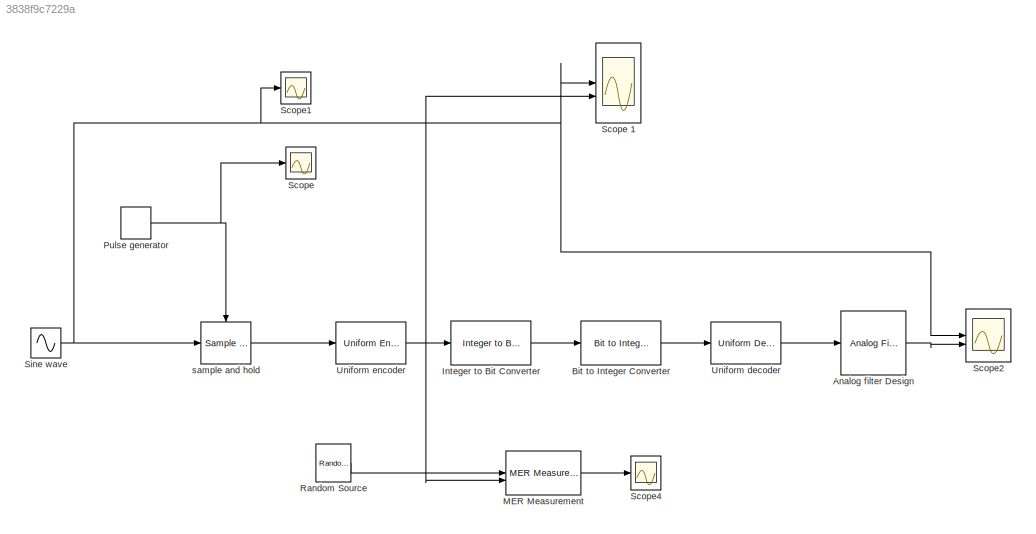
MODEL slx_3838f9c7229a
KIND model
CONFIG AbsTol = auto
CONFIG EnableMultiTasking = off
CONFIG FixedStep = auto
CONFIG MaxStep = auto
CONFIG MinStep = auto
CONFIG RelTol = 1e-3
CONFIG SampleTimeConstraint = Unconstrained
CONFIG SolverName = VariableStepAuto
CONFIG StartTime = 0.0
CONFIG StopTime = 1
BLOCK [Reference] Analog filter Design  REF=dspfdesign/Analog
Filter Design
  SourceBlock = dspfdesign/Analog\nFilter Design
  SourceType = Analog Filter Design
BLOCK [Reference] Bit to Integer Converter  REF=simulink/Logic and Bit
Operations/Bit to Integer
Converter
  SourceBlock = simulink/Logic and Bit\nOperations/Bit to Integer\nConverter
  SourceType = Bit to Integer Converter
BLOCK [Reference] Integer to Bit Converter  REF=simulink/Logic and Bit
Operations/Integer to Bit
Converter
  SourceBlock = simulink/Logic and Bit\nOperations/Integer to Bit\nConverter
  SourceType = Integer to Bit Converter
BLOCK [Reference] MER Measurement  REF=commutil2/MER Measurement
  SourceBlock = commutil2/MER Measurement
  SourceType = MER Measurement
BLOCK [DiscretePulseGenerator] Pulse generator
  Amplitude = 5
  Period = 1/20
  PulseType = Time based
  PulseWidth = 50
BLOCK [Reference] Random Source  REF=dspsrcs4/Random
Source
  SourceBlock = dspsrcs4/Random\nSource
  SourceType = Random Source
  UserDataPersistent = on
BLOCK [Scope] Scope
  Floating = off
  NumInputPorts = 1
  ScopeSpecificationString = Simulink.scopes.TimeScopeBlockCfg('CurrentConfiguration', extmgr.ConfigurationSet(extmgr.Configuration('Core','General UI',true,'FigureColor',[1 1 1]),extmgr.Configuration('Core','Source UI',true),extmgr.Configuration('Sources','WiredSimulink',true,'DataLoggingVariableName','ScopeData1'),extmgr.Configuration('Visuals','Time Domain',true,'SerializedDisplays',{struct('MinYLimReal','-0.625','MaxYLimR...<+1876ch>
BLOCK [Scope] Scope 1
  Floating = off
  NumInputPorts = 2
  ScopeSpecificationString = Simulink.scopes.TimeScopeBlockCfg('CurrentConfiguration', extmgr.ConfigurationSet(extmgr.Configuration('Core','General UI',true,'FigureColor',[1 1 1]),extmgr.Configuration('Core','Source UI',true),extmgr.Configuration('Sources','WiredSimulink',true,'DataLoggingSaveFormat','Array','DataLoggingLimitDataPoints',true,'DataLoggingDecimation','1'),extmgr.Configuration('Visuals','Time Domain',true,'Seria...<+2206ch>
BLOCK [Scope] Scope1
  Floating = off
  NumInputPorts = 1
  ScopeSpecificationString = Simulink.scopes.TimeScopeBlockCfg('CurrentConfiguration', extmgr.ConfigurationSet(extmgr.Configuration('Core','General UI',true,'FigureColor',[1 1 1]),extmgr.Configuration('Core','Source UI',true),extmgr.Configuration('Sources','WiredSimulink',true,'DataLoggingVariableName','ScopeData2'),extmgr.Configuration('Visuals','Time Domain',true,'SerializedDisplays',{struct('MinYLimReal','-6.25','MaxYLimRe...<+2091ch>
BLOCK [Scope] Scope2
  Floating = off
  NumInputPorts = 2
  ScopeSpecificationString = Simulink.scopes.TimeScopeBlockCfg('CurrentConfiguration', extmgr.ConfigurationSet(extmgr.Configuration('Core','General UI',true,'FigureColor',[1 1 1]),extmgr.Configuration('Core','Source UI',true),extmgr.Configuration('Sources','WiredSimulink',true,'DataLoggingSaveFormat','Array','DataLoggingLimitDataPoints',true,'DataLoggingDecimation','1','DataLoggingVariableName','ScopeData1'),extmgr.Configurat...<+2763ch>
BLOCK [Scope] Scope4
  Floating = off
  NumInputPorts = 1
  ScopeSpecificationString = Simulink.scopes.TimeScopeBlockCfg('CurrentConfiguration', extmgr.ConfigurationSet(extmgr.Configuration('Core','General UI',true,'FigureColor',[1 1 1]),extmgr.Configuration('Core','Source UI',true),extmgr.Configuration('Sources','WiredSimulink',true,'DataLoggingVariableName','ScopeData2'),extmgr.Configuration('Visuals','Time Domain',true,'SerializedDisplays',{struct('MinYLimReal','-31.37323','MaxYL...<+1875ch>
BLOCK [Sin] Sine wave
  Amplitude = 5
  Frequency = 2*pi*2
  SampleTime = 0
BLOCK [Reference] Uniform decoder  REF=dspquant2/Uniform
Decoder
  SourceBlock = dspquant2/Uniform\nDecoder
  SourceType = Uniform Decoder
BLOCK [Reference] Uniform encoder  REF=dspquant2/Uniform
Encoder
  SourceBlock = dspquant2/Uniform\nEncoder
  SourceType = Uniform Encoder
BLOCK [Reference] sample and hold  REF=dspsigops/Sample
and Hold
  SourceBlock = dspsigops/Sample\nand Hold
  SourceType = Sample and Hold
LINE Analog filter Design:1 -> Scope2:2
LINE Bit to Integer Converter:1 -> Uniform decoder:1
LINE Integer to Bit Converter:1 -> Bit to Integer Converter:1
LINE MER Measurement:1 -> Scope4:1
NET Pulse generator:1 -> Scope:1, sample and hold:trigger
LINE Random Source:1 -> MER Measurement:1
NET Sine wave:1 -> Scope 1:1, Scope1:1, Scope2:1, sample and hold:1
LINE Uniform decoder:1 -> Analog filter Design:1
NET Uniform encoder:1 -> Integer to Bit Converter:1, MER Measurement:2, Scope 1:2
LINE sample and hold:1 -> Uniform encoder:1
note: NET lines group one-source signal fan-out (src -> all destinations, sorted); 1:1 wires keep LINE
